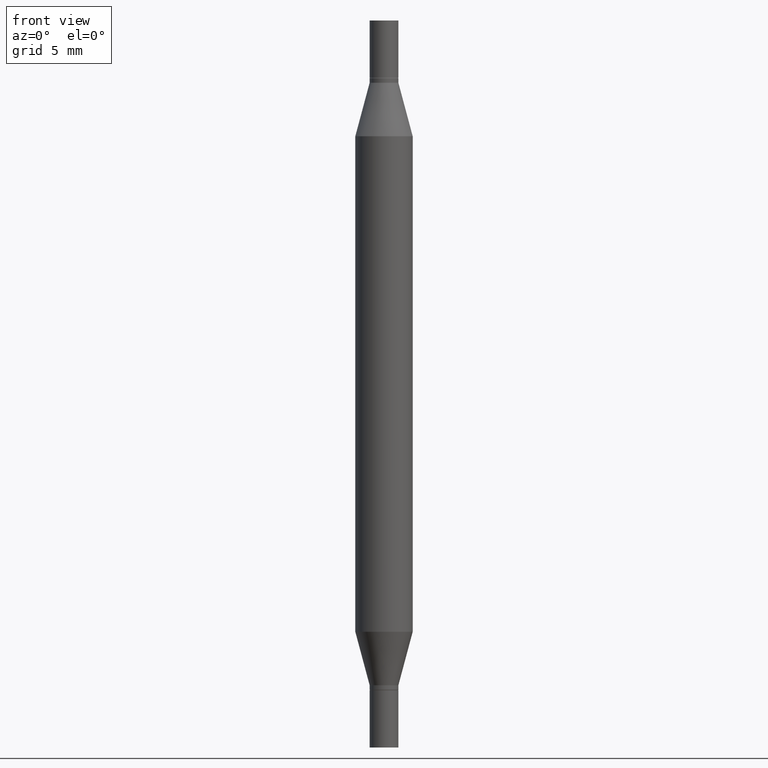
[diagram: clean part render]
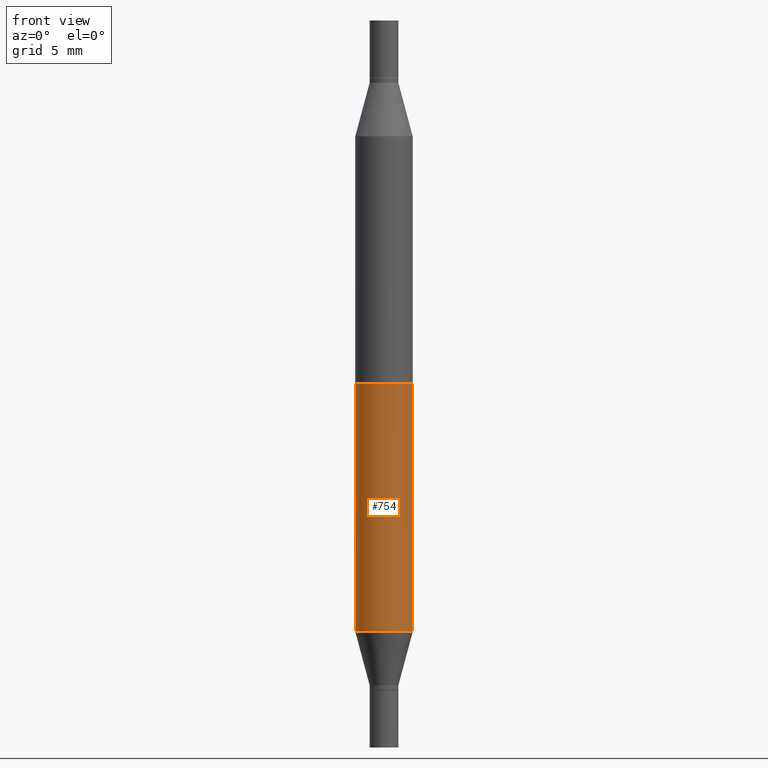
[diagram: same view with one face highlighted and labeled with its STEP entity id]
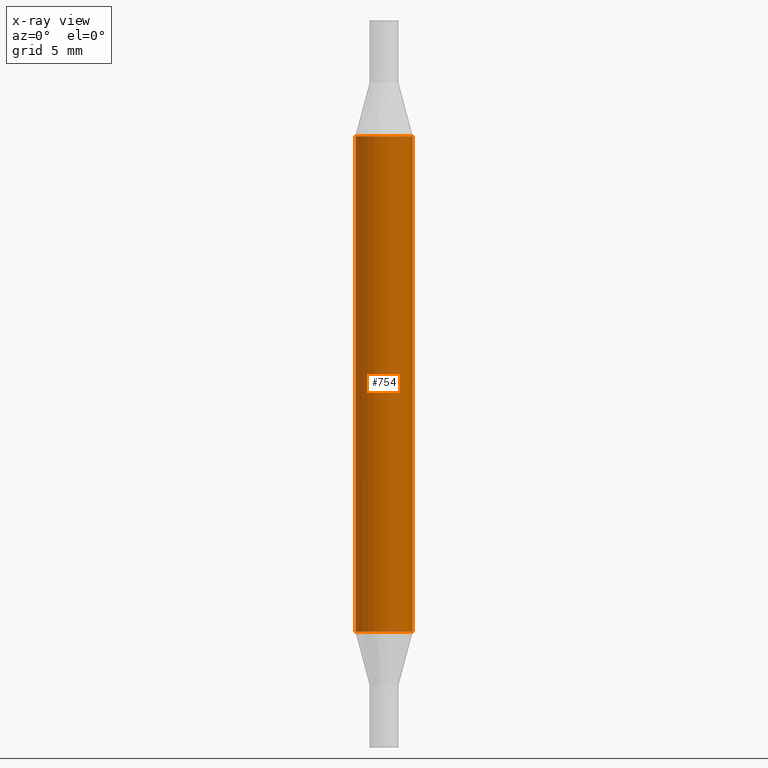
[diagram: x-ray of the same camera — body ghosted, the highlighted face saturated]
A machine part, front view. The second image highlights one B-rep face of the part: STEP entity #754.
The next image is the same camera in x-ray: the body ghosted, the highlighted face saturated — about 0% of this face is hidden behind the body in this view.
In plain terms, the highlighted cylindrical surface (edge-blend (fillet) strip) has radius 1.4999 mm, axis along (-0, -0, -1).
Its self-contained STEP definition (entity closure, byte-faithful):
#15 = VECTOR ( 'NONE', #630, 39.37007874015748143 ) ;
#22 = DIRECTION ( 'NONE',  ( -2.445468806185136597E-29, 3.491481338843145583E-15, 1.000000000000000000 ) ) ;
#29 = DIRECTION ( 'NONE',  ( 2.445468806185136597E-29, 3.491805094961124077E-15, 1.000000000000000000 ) ) ;
#50 = CIRCLE ( 'NONE', #450, 0.05904999999999999832 ) ;
#78 = CARTESIAN_POINT ( 'NONE',  ( 0.05904999999999999832, -4.804643186156564878E-15, -1.258004501176717804 ) ) ;
#154 = ORIENTED_EDGE ( 'NONE', *, *, #311, .T. ) ;
#169 = CARTESIAN_POINT ( 'NONE',  ( 3.076410765668156654E-29, -4.392299240039190746E-15, -1.258004501176717804 ) ) ;
#182 = VERTEX_POINT ( 'NONE', #673 ) ;
#194 = VECTOR ( 'NONE', #546, 39.37007874015748143 ) ;
#195 = LINE ( 'NONE', #409, #15 ) ;
#224 = EDGE_CURVE ( 'NONE', #182, #553, #813, .T. ) ;
#257 = CARTESIAN_POINT ( 'NONE',  ( 3.076410765668156654E-29, -8.311408901143919011E-16, -0.2380954988232820146 ) ) ;
#261 = LINE ( 'NONE', #709, #194 ) ;
#311 = EDGE_CURVE ( 'NONE', #674, #182, #195, .T. ) ;
#339 = EDGE_CURVE ( 'NONE', #934, #553, #261, .T. ) ;
#341 = CARTESIAN_POINT ( 'NONE',  ( -0.05904999999999999832, -4.260284833459836245E-16, -0.2380954988232820146 ) ) ;
#366 = FACE_OUTER_BOUND ( 'NONE', #940, .T. ) ;
#407 = EDGE_CURVE ( 'NONE', #674, #934, #50, .T. ) ;
#409 = CARTESIAN_POINT ( 'NONE',  ( -0.05905000000000000526, -4.818735010038875060E-15, -1.496099999999999985 ) ) ;
#450 = AXIS2_PLACEMENT_3D ( 'NONE', #257, #29, #555 ) ;
#461 = DIRECTION ( 'NONE',  ( 1.000000000000000000, -6.982962677686272233E-15, 0.000000000000000000 ) ) ;
#469 = ORIENTED_EDGE ( 'NONE', *, *, #224, .T. ) ;
#495 = ORIENTED_EDGE ( 'NONE', *, *, #407, .F. ) ;
#530 = DIRECTION ( 'NONE',  ( -2.445468806185136597E-29, -3.491805094961124077E-15, -1.000000000000000000 ) ) ;
#546 = DIRECTION ( 'NONE',  ( -2.445468806185136877E-29, -3.491805094961123683E-15, -1.000000000000000000 ) ) ;
#553 = VERTEX_POINT ( 'NONE', #78 ) ;
#555 = DIRECTION ( 'NONE',  ( 1.000000000000000000, -6.982962677686265133E-15, 0.000000000000000000 ) ) ;
#593 = DIRECTION ( 'NONE',  ( 1.000000000000000000, -6.982962677686273021E-15, 0.000000000000000000 ) ) ;
#614 = CARTESIAN_POINT ( 'NONE',  ( 0.05904999999999999832, -1.243484836231766624E-15, -0.2380954988232820146 ) ) ;
#622 = AXIS2_PLACEMENT_3D ( 'NONE', #828, #530, #461 ) ;
#630 = DIRECTION ( 'NONE',  ( -2.445468806185136877E-29, -3.491805094961123683E-15, -1.000000000000000000 ) ) ;
#673 = CARTESIAN_POINT ( 'NONE',  ( -0.05904999999999999832, -2.206690208753205272E-15, -1.258004501176717804 ) ) ;
#674 = VERTEX_POINT ( 'NONE', #341 ) ;
#709 = CARTESIAN_POINT ( 'NONE',  ( 0.05905000000000000526, -5.636191362924657961E-15, -1.496099999999999985 ) ) ;
#754 = ADVANCED_FACE ( 'NONE', ( #366 ), #889, .T. ) ;
#808 = ORIENTED_EDGE ( 'NONE', *, *, #339, .F. ) ;
#813 = CIRCLE ( 'NONE', #979, 0.05904999999999999832 ) ;
#828 = CARTESIAN_POINT ( 'NONE',  ( 0.000000000000000000, -5.223847416807283040E-15, -1.496099999999999985 ) ) ;
#889 = CYLINDRICAL_SURFACE ( 'NONE', #622, 0.05905000000000000526 ) ;
#934 = VERTEX_POINT ( 'NONE', #614 ) ;
#940 = EDGE_LOOP ( 'NONE', ( #495, #154, #469, #808 ) ) ;
#979 = AXIS2_PLACEMENT_3D ( 'NONE', #169, #22, #593 ) ;